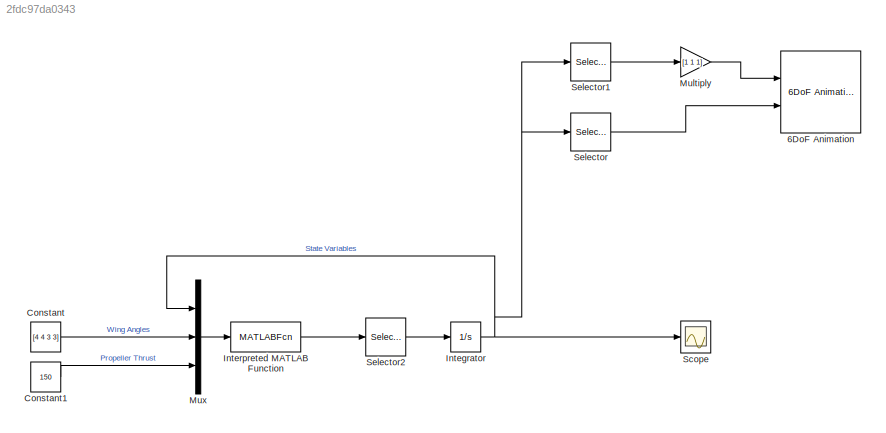
MODEL slx_2fdc97da0343
KIND model
CONFIG AbsTol = auto
CONFIG EnableMultiTasking = off
CONFIG FixedStep = auto
CONFIG MaxStep = auto
CONFIG MinStep = auto
CONFIG RelTol = 1e-3
CONFIG SampleTimeConstraint = Unconstrained
CONFIG Solver = VariableStepAuto
CONFIG SolverName = VariableStepAuto
CONFIG StartTime = 0.0
CONFIG StopTime = 3
BLOCK [Reference] 6DoF Animation  REF=aerolibanim/6DoF Animation
  Ports = [2]
  SourceBlock = aerolibanim/6DoF Animation
  SourceProductBaseCode = AE
  SourceProductName = Aerospace Blockset
  SourceType = 6DoF_Animation
BLOCK [Constant] Constant
  Value = [4 4 3 3]
BLOCK [Constant] Constant1
  Value = 150
BLOCK [Integrator] Integrator
  InitialCondition = x0
  Ports = [1, 1]
BLOCK [MATLABFcn] Interpreted MATLAB Function
  MATLABFcn = scalemodelstatefunction(u(1:12),u(13:16),u(17))
  OutputDimensions = 12
  Ports = [1, 1]
BLOCK [Gain] Multiply
  Gain = [1 1 1]
  OutDataTypeStr = Inherit: Inherit via internal rule
  ParamDataTypeStr = Inherit: Inherit via internal rule
  SaturateOnIntegerOverflow = off
BLOCK [Mux] Mux
  DisplayOption = bar
  Inputs = 3
  Ports = [3, 1]
BLOCK [Scope] Scope
  Floating = off
  NumInputPorts = 1
  Ports = [1]
  ScopeSpecificationString = Simulink.scopes.TimeScopeBlockCfg('CurrentConfiguration', extmgr.ConfigurationSet(extmgr.Configuration('Core','General UI',true),extmgr.Configuration('Core','Source UI',true),extmgr.Configuration('Sources','WiredSimulink',true),extmgr.Configuration('Visuals','Time Domain',true,'SerializedDisplays',{struct('MinYLimReal','-6.15253','MaxYLimReal','27.66685','YLabelReal','','MinYLimMag','0.00000','Max...<+2035ch>
BLOCK [Selector] Selector
  IndexOptions = Index vector (dialog)
  Indices = [8 7 9]
  InputPortWidth = 12
  OutputSizes = 1
  Ports = [1, 1]
BLOCK [Selector] Selector1
  IndexOptions = Index vector (dialog)
  Indices = [1 2 3]
  InputPortWidth = 12
  OutputSizes = 1
  Ports = [1, 1]
BLOCK [Selector] Selector2
  IndexOptions = Index vector (dialog)
  Indices = [1 2 3 4 5 6 7 8 9 10 11 12]
  InputPortWidth = 12
  OutputSizes = 1
  Ports = [1, 1]
LINE Constant1:1 -> Mux:3
LINE Constant:1 -> Mux:2
NET Integrator:1 -> Mux:1, Scope:1, Selector1:1, Selector:1
LINE Interpreted MATLAB Function:1 -> Selector2:1
LINE Multiply:1 -> 6DoF Animation:1
LINE Mux:1 -> Interpreted MATLAB Function:1
LINE Selector1:1 -> Multiply:1
LINE Selector2:1 -> Integrator:1
LINE Selector:1 -> 6DoF Animation:2
note: NET lines group one-source signal fan-out (src -> all destinations, sorted); 1:1 wires keep LINE
